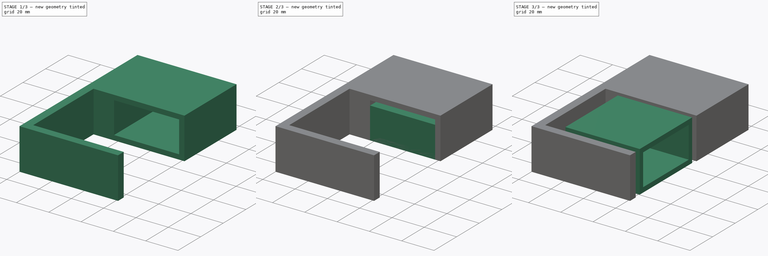
[diagram: build sequence overview — one tinted view per stage of 3, left to right]
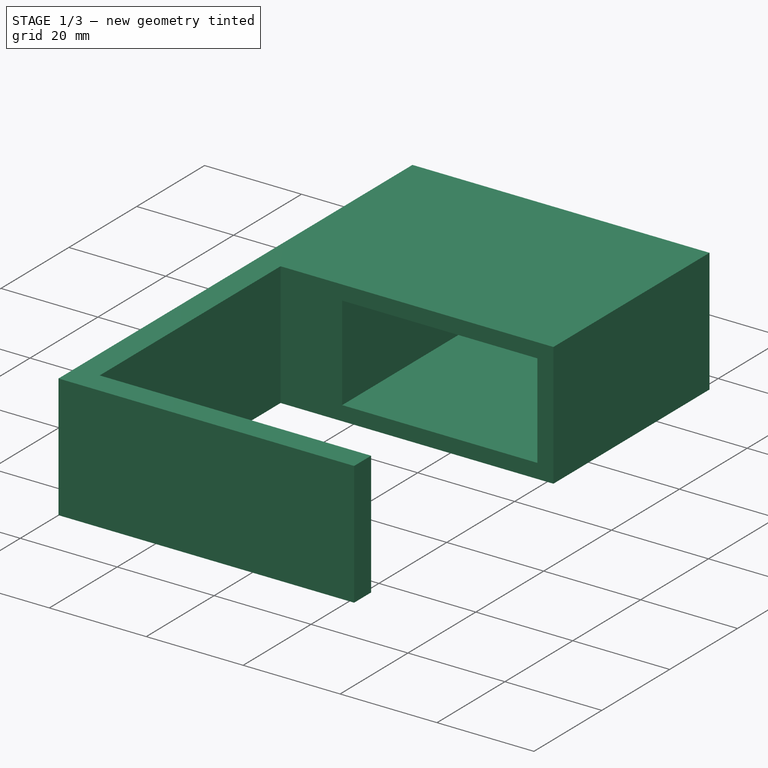
[diagram: stage 1 of 3 — iso view after this stage's code; geometry added in this stage tinted green]
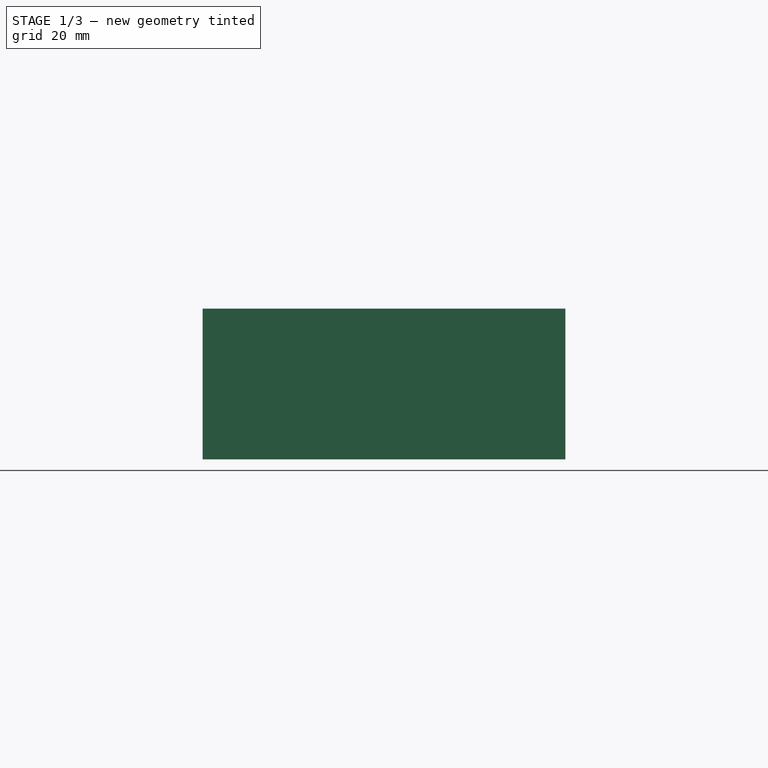
[diagram: stage 1 of 3 — front view after this stage's code; geometry added in this stage tinted green]
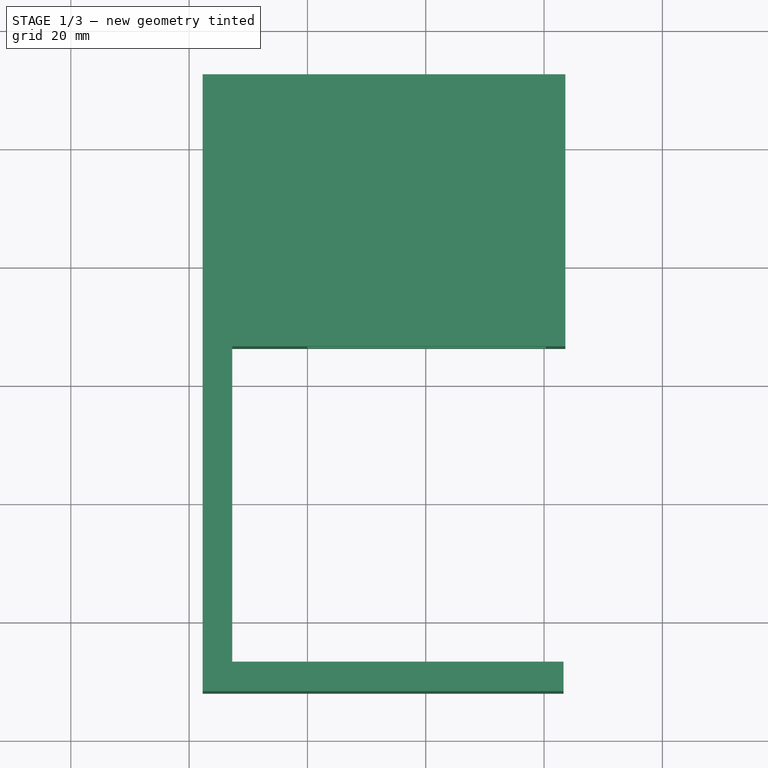
[diagram: stage 1 of 3 — top view after this stage's code; geometry added in this stage tinted green]
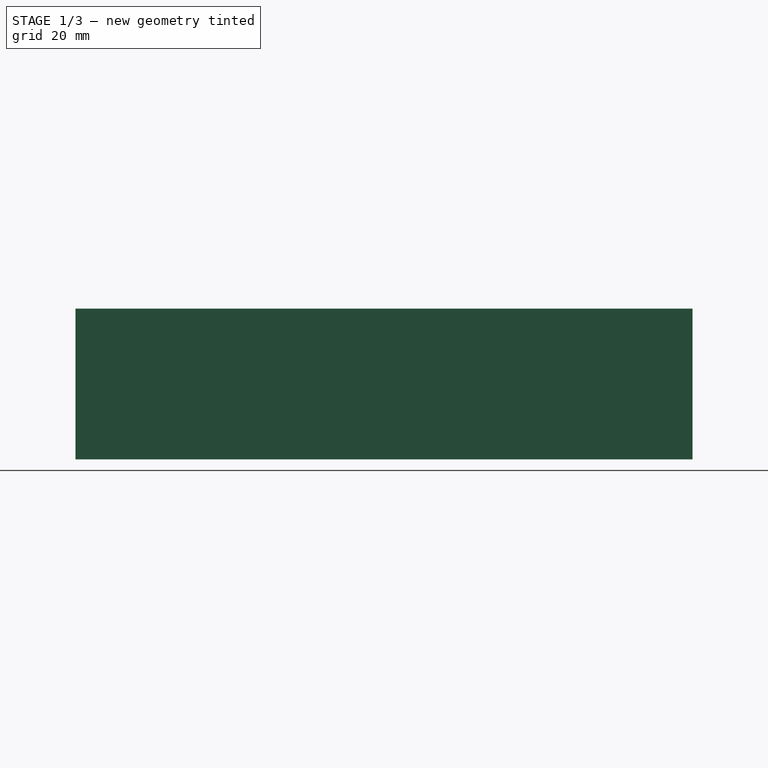
[diagram: stage 1 of 3 — right view after this stage's code; geometry added in this stage tinted green]
FCSTD DOCUMENT  (FreeCAD 0.20R29410 (Git))
Label: hip_01
License: All rights reserved
LicenseURL: http://en.wikipedia.org/wiki/All_rights_reserved
objects: Sketcher::SketchObject×5, PartDesign::Pad×3, PartDesign::Body×3, PartDesign::Pocket×2
note: 18 computed .brp shape members not serialized (recipe doc carries the construction recipe); baked Part::Feature solids carry a one-line shape summary decoded from their .brp

FEATURE [PartDesign::Body] Body001  label="HipServoBody"
  Group = -> [Sketch002,Pad001]
  Origin = -> Origin001
  Placement = pos=(0,0,3) rot=(0,0,1;0rad)
  Tip = -> Pad001
FEATURE [Sketcher::SketchObject] Sketch003
  FullyConstrained = false
  MapMode = 5
  Support = -> [XY_Plane002]
  sketch-geometry (8):
    g0: LineSegment StartX=43.5937 StartY=46.3 StartZ=0 EndX=43.5937 EndY=92.3 EndZ=0
    g1: LineSegment StartX=43.5937 StartY=92.3 StartZ=0 EndX=-17.7063 EndY=92.3 EndZ=0
    g2: LineSegment StartX=-17.7063 StartY=92.3 StartZ=0 EndX=-17.7063 EndY=-12 EndZ=0
    g3: LineSegment StartX=-17.7063 StartY=-12 StartZ=0 EndX=43.2937 EndY=-12 EndZ=0
    g4: LineSegment StartX=43.2937 StartY=-12 StartZ=0 EndX=43.2937 EndY=-7 EndZ=0
    g5: LineSegment StartX=43.2937 StartY=-7 StartZ=0 EndX=-12.7063 EndY=-7 EndZ=0
    g6: LineSegment StartX=-12.7063 StartY=-7 StartZ=0 EndX=-12.7063 EndY=46.3 EndZ=0
    g7: LineSegment StartX=-12.7063 StartY=46.3 StartZ=0 EndX=43.5937 EndY=46.3 EndZ=0
  constraints (23):
    c: Vertical(g0)
    c: Coincident(g0,g1)
    c: Horizontal(g1)
    c: Coincident(g1,g2)
    c: Vertical(g2)
    c: Coincident(g2,g3)
    c: Horizontal(g3)
    c: Coincident(g3,g4)
    c: Coincident(g4,g5)
    c: Horizontal(g5)
    c: Coincident(g5,g6)
    c: Vertical(g6)
    c: Coincident(g6,g7)
    c: Coincident(g7,g0)
    c: Horizontal(g7)
    c: DistanceX(g1,g0) = 61.3
    c: DistanceY(g0,g0) = 46
    c: DistanceY(g3,g4) = 5
    c: DistanceX(g2,g5) = 5
    c: DistanceY(g-1,g0) = 46.3
    c: DistanceY(g2,g1) = 104.3
    c: DistanceX(g2,g3) = 61
    c: DistanceX(g5,g4) = 56
FEATURE [PartDesign::Pad] Pad002
  Direction = (0,0,1)
  Length = 25.5
  Length2 = 10
  Profile = -> Sketch003
  ReferenceAxis = -> Sketch003 [N_Axis]
  Type = 0
FEATURE [Sketcher::SketchObject] Sketch004
  AttachmentOffset = pos=(0,0,3) rot=(0,0,1;0rad)
  FullyConstrained = true
  MapMode = 5
  Placement = pos=(0,0,3) rot=(0,0,1;0rad)
  Support = -> [XY_Plane002]
  sketch-geometry (4):
    g0: LineSegment StartX=0 StartY=89.3 StartZ=0 EndX=40.3 EndY=89.3 EndZ=0
    g1: LineSegment StartX=40.3 StartY=89.3 StartZ=0 EndX=40.3 EndY=46.3 EndZ=0
    g2: LineSegment StartX=40.3 StartY=46.3 StartZ=0 EndX=0 EndY=46.3 EndZ=0
    g3: LineSegment StartX=0 StartY=46.3 StartZ=0 EndX=0 EndY=89.3 EndZ=0
  constraints (12):
    c: Coincident(g0,g1)
    c: Coincident(g1,g2)
    c: Coincident(g2,g3)
    c: Coincident(g3,g0)
    c: Horizontal(g0)
    c: Horizontal(g2)
    c: Vertical(g1)
    c: Vertical(g3)
    c: PointOnObject(g0,g-2)
    c: DistanceX(g2,g2) = 40.3
    c: DistanceY(g1,g1) = 43
    c: DistanceY(g2) = 46.3
FEATURE [PartDesign::Pocket] Pocket001
  BaseFeature = -> Pad002
  Direction = (0,0,-1)
  Length = 19.5
  Length2 = 5
  Profile = -> Sketch004
  ReferenceAxis = -> Sketch004 [N_Axis]
  Reversed = true
  Type = 0
FEATURE [PartDesign::Body] Body002
  Group = -> [Sketch003,Pad002,Sketch004,Pocket001]
  Origin = -> Origin002
  Tip = -> Pocket001
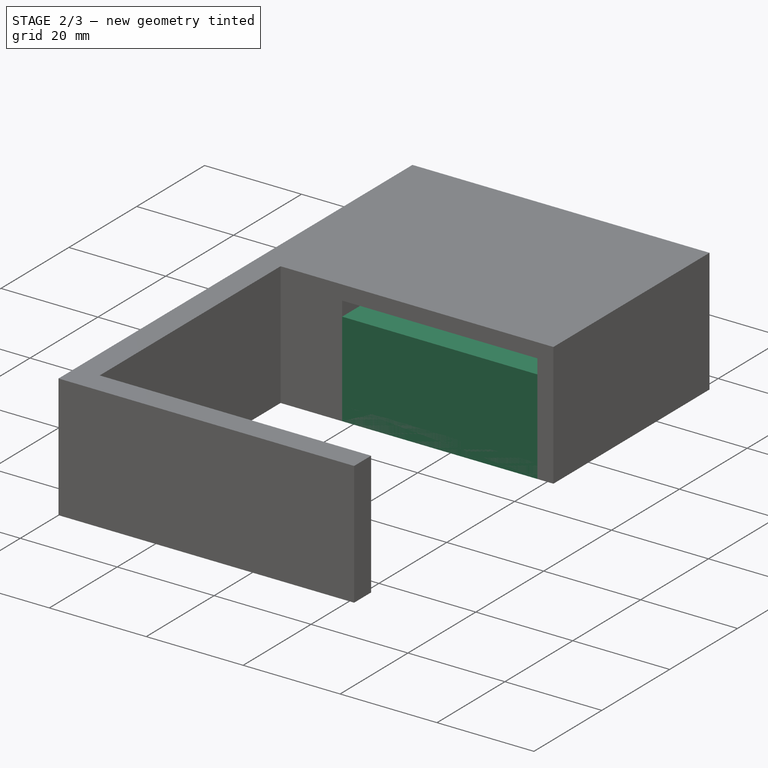
[diagram: stage 2 of 3 — iso view after this stage's code; geometry added in this stage tinted green]
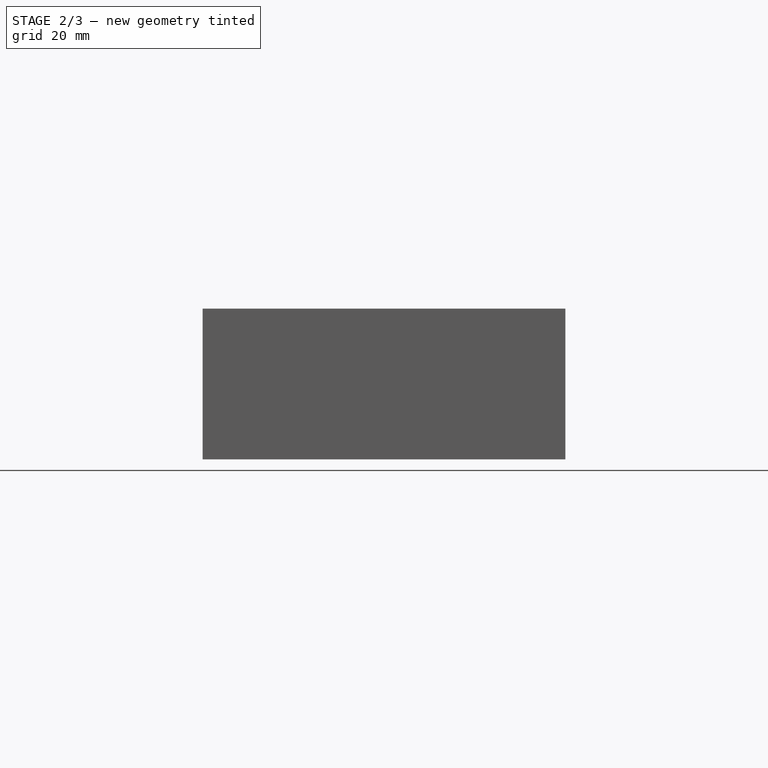
[diagram: stage 2 of 3 — front view after this stage's code; geometry added in this stage tinted green]
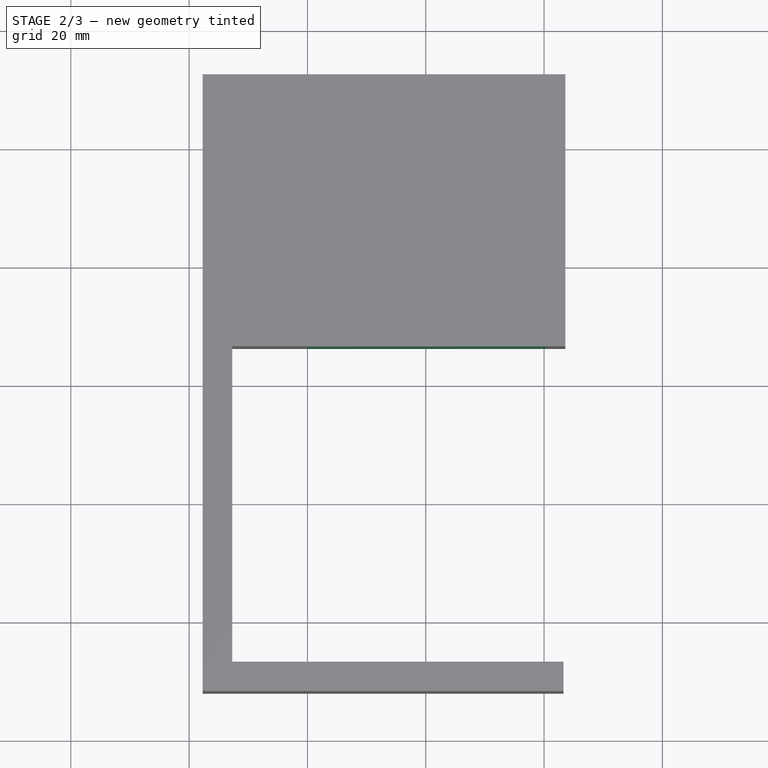
[diagram: stage 2 of 3 — top view after this stage's code; geometry added in this stage tinted green]
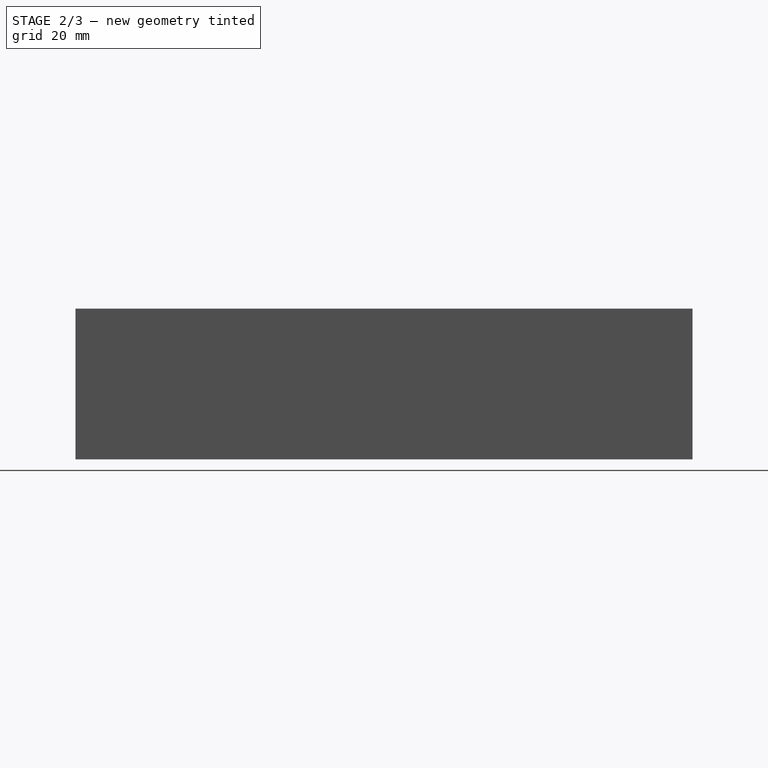
[diagram: stage 2 of 3 — right view after this stage's code; geometry added in this stage tinted green]
FEATURE [PartDesign::Body] Body  label="FemurBody"
  Group = -> [Sketch,Sketch001,Pad,Pocket]
  Origin = -> Origin
  Tip = -> Pocket
FEATURE [Sketcher::SketchObject] Sketch002
  FullyConstrained = true
  MapMode = 5
  Support = -> [XY_Plane001]
  sketch-geometry (4):
    g0: LineSegment StartX=0 StartY=89.3 StartZ=0 EndX=40.3 EndY=89.3 EndZ=0
    g1: LineSegment StartX=40.3 StartY=89.3 StartZ=0 EndX=40.3 EndY=46.3 EndZ=0
    g2: LineSegment StartX=40.3 StartY=46.3 StartZ=0 EndX=0 EndY=46.3 EndZ=0
    g3: LineSegment StartX=0 StartY=46.3 StartZ=0 EndX=0 EndY=89.3 EndZ=0
  constraints (12):
    c: Coincident(g0,g1)
    c: Coincident(g1,g2)
    c: Coincident(g2,g3)
    c: Coincident(g3,g0)
    c: Horizontal(g0)
    c: Horizontal(g2)
    c: Vertical(g1)
    c: Vertical(g3)
    c: PointOnObject(g0,g-2)
    c: DistanceX(g2,g2) = 40.3
    c: DistanceY(g1,g1) = 43
    c: DistanceY(g2) = 46.3
FEATURE [PartDesign::Pad] Pad001
  Direction = (0,0,1)
  Length = 19.5
  Length2 = 10
  Profile = -> Sketch002
  ReferenceAxis = -> Sketch002 [N_Axis]
  Type = 0
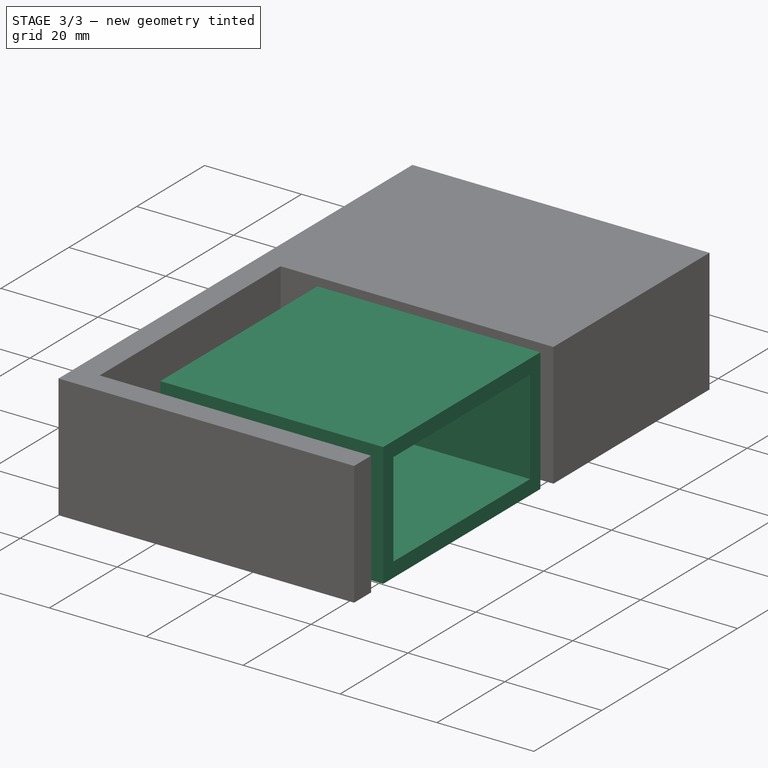
[diagram: stage 3 of 3 — iso view after this stage's code; geometry added in this stage tinted green]
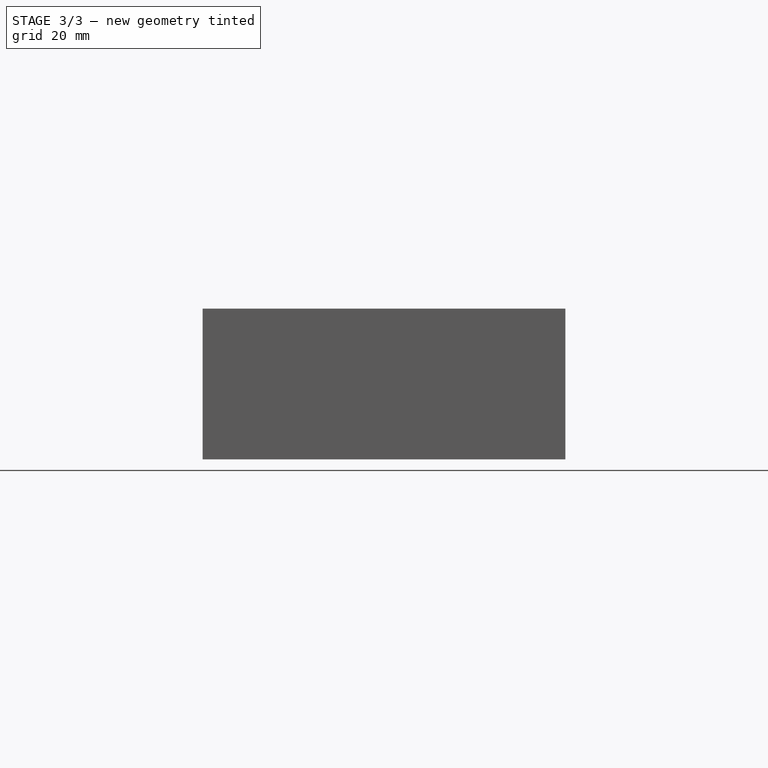
[diagram: stage 3 of 3 — front view after this stage's code; geometry added in this stage tinted green]
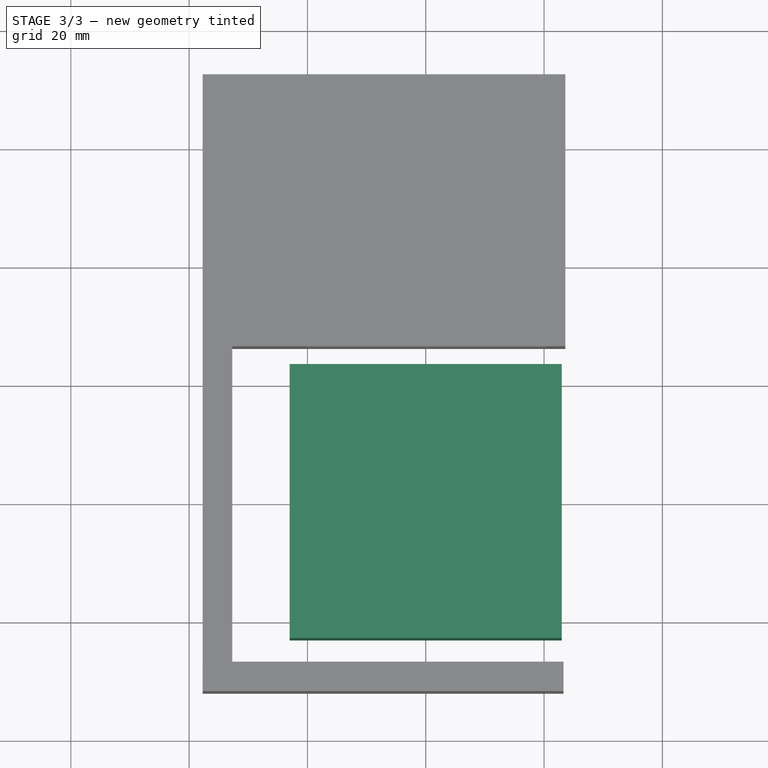
[diagram: stage 3 of 3 — top view after this stage's code; geometry added in this stage tinted green]
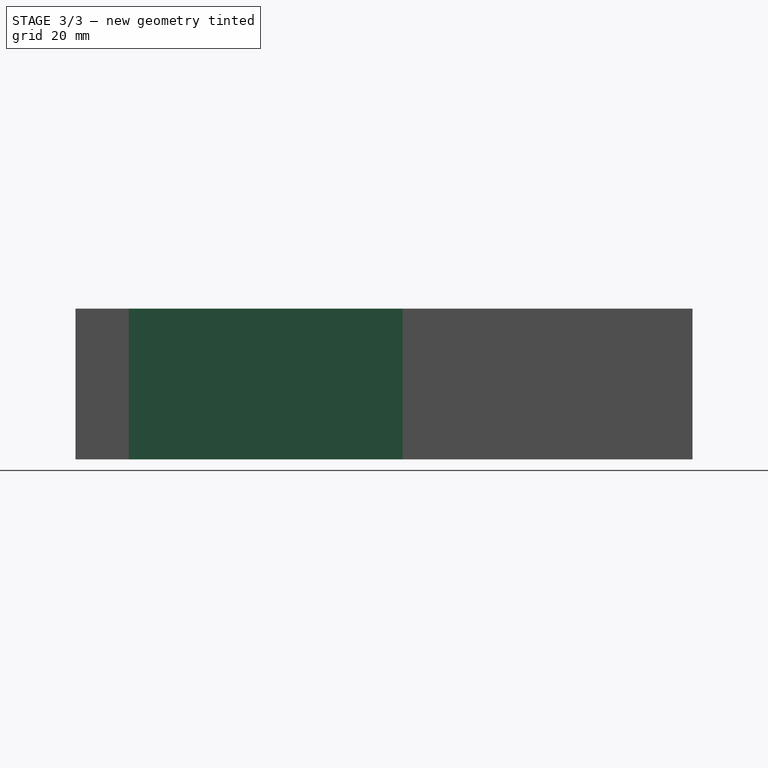
[diagram: stage 3 of 3 — right view after this stage's code; geometry added in this stage tinted green]
FEATURE [Sketcher::SketchObject] Sketch
  AttachmentOffset = pos=(0,0,3) rot=(0,0,1;0rad)
  FullyConstrained = true
  MapMode = 5
  Placement = pos=(0,0,3) rot=(0,0,1;0rad)
  Support = -> [XY_Plane]
  sketch-geometry (4):
    g0: LineSegment StartX=0 StartY=40.3 StartZ=0 EndX=43 EndY=40.3 EndZ=0
    g1: LineSegment StartX=43 StartY=40.3 StartZ=0 EndX=43 EndY=0 EndZ=0
    g2: LineSegment StartX=43 StartY=0 StartZ=0 EndX=0 EndY=0 EndZ=0
    g3: LineSegment StartX=0 StartY=0 StartZ=0 EndX=0 EndY=40.3 EndZ=0
  constraints (12):
    c: Coincident(g0,g1)
    c: Coincident(g1,g2)
    c: Coincident(g2,g3)
    c: Coincident(g3,g0)
    c: Horizontal(g0)
    c: Horizontal(g2)
    c: Vertical(g1)
    c: Vertical(g3)
    c: DistanceX(g0,g0) = 43
    c: DistanceY(g1,g1) = 40.3
    c: DistanceX(g2,g-1) = 0
    c: DistanceY(g2,g-1) = 0
FEATURE [Sketcher::SketchObject] Sketch001
  FullyConstrained = true
  MapMode = 5
  Support = -> [XY_Plane]
  sketch-geometry (4):
    g0: LineSegment StartX=-3 StartY=43.3 StartZ=0 EndX=43 EndY=43.3 EndZ=0
    g1: LineSegment StartX=43 StartY=43.3 StartZ=0 EndX=43 EndY=-3 EndZ=0
    g2: LineSegment StartX=43 StartY=-3 StartZ=0 EndX=-3 EndY=-3 EndZ=0
    g3: LineSegment StartX=-3 StartY=-3 StartZ=0 EndX=-3 EndY=43.3 EndZ=0
  constraints (12):
    c: Coincident(g0,g1)
    c: Coincident(g1,g2)
    c: Coincident(g2,g3)
    c: Coincident(g3,g0)
    c: Horizontal(g0)
    c: Horizontal(g2)
    c: Vertical(g1)
    c: Vertical(g3)
    c: DistanceX(g0,g0) = 46
    c: DistanceY(g1,g1) = 46.3
    c: DistanceX(g2,g-1) = 3
    c: DistanceY(g2,g-1) = 3
FEATURE [PartDesign::Pad] Pad
  Direction = (0,0,1)
  Length = 25.5
  Length2 = 10
  Profile = -> Sketch001
  ReferenceAxis = -> Sketch001 [N_Axis]
  Type = 0
FEATURE [PartDesign::Pocket] Pocket
  BaseFeature = -> Pad
  Direction = (0,0,-1)
  Length = 19.5
  Length2 = 5
  Profile = -> Sketch
  ReferenceAxis = -> Sketch [N_Axis]
  Reversed = true
  Type = 0
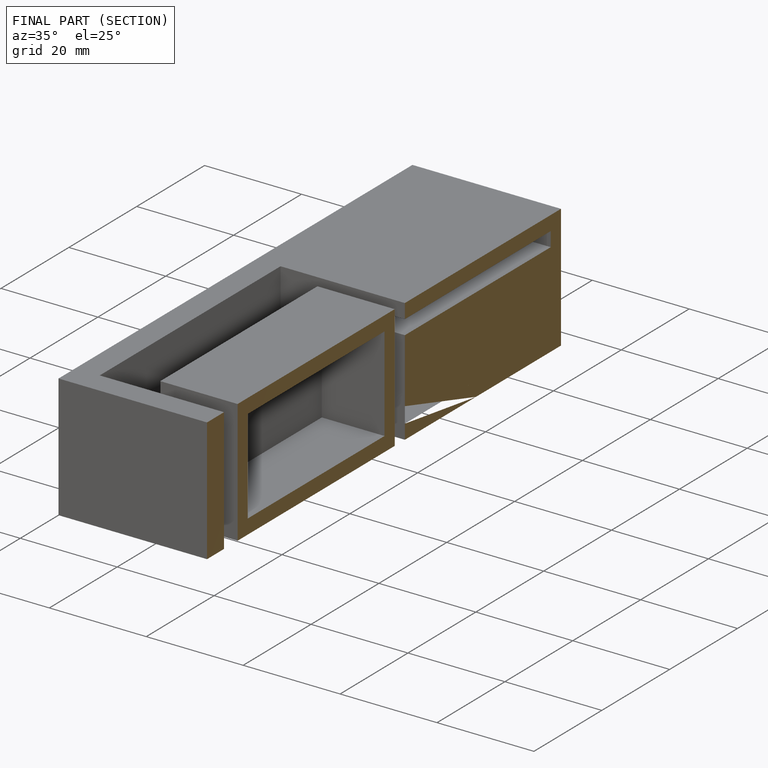
[diagram: finished part — half-section view (interior)]
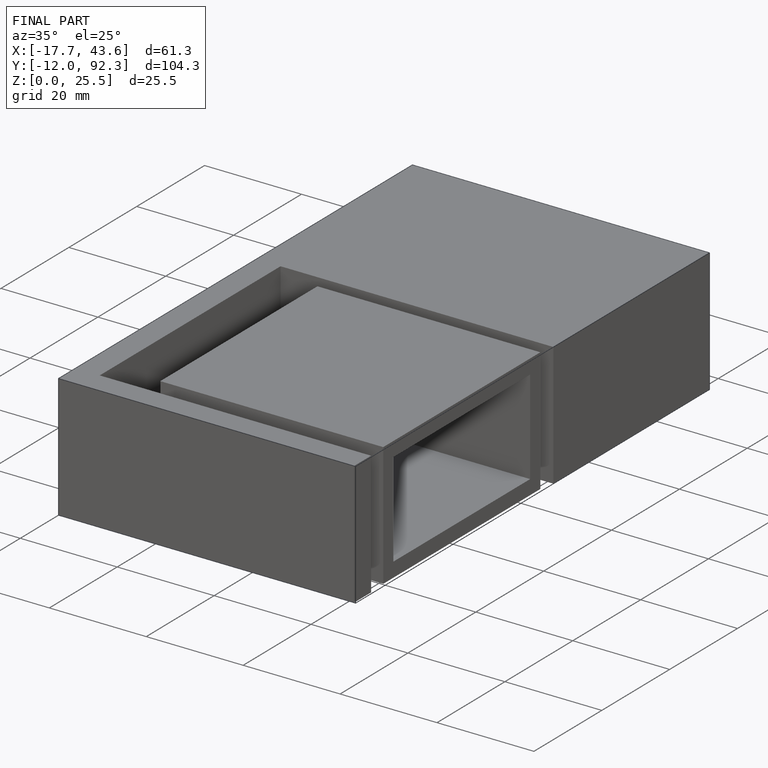
[diagram: finished part — iso view with bounding-box wireframe]
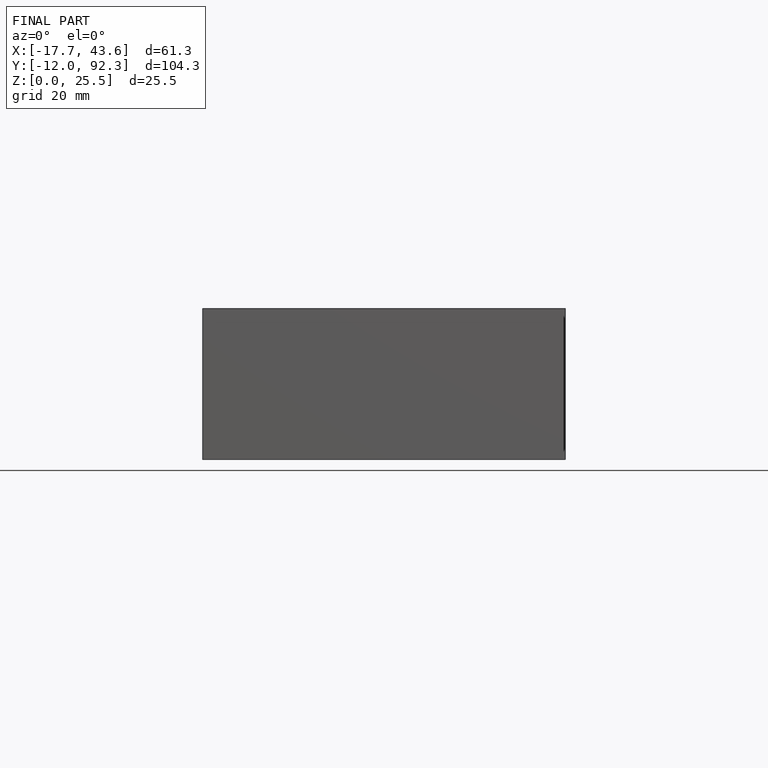
[diagram: finished part — front view with bounding-box wireframe]
